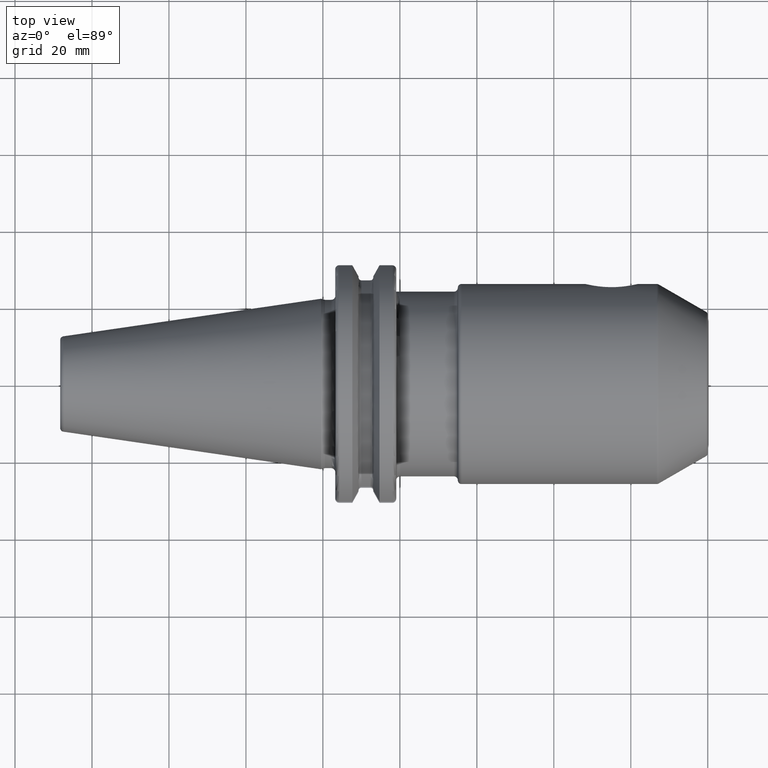
[diagram: clean part render]
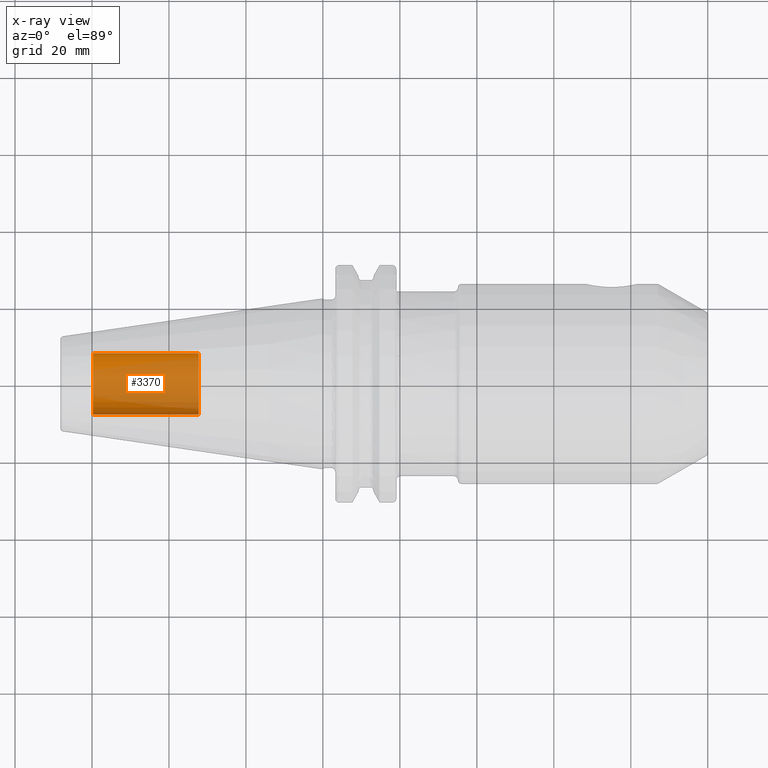
[diagram: x-ray — body ghosted, one internal face saturated and labeled with its STEP entity id]
A machine part, top view, then the same camera in x-ray: the body is ghosted and one INTERNAL B-rep face — a face not visible from any outside direction — is saturated and labeled: STEP entity #3370.
In plain terms, the highlighted cylindrical surface (edge-blend (fillet) strip) has radius 8.0028 mm, axis along (1, 0, 0).
Its self-contained STEP definition (entity closure, byte-faithful):
#3305=CARTESIAN_POINT('',(-5.98E1,0.E0,0.E0));
#3306=DIRECTION('',(-1.E0,0.E0,0.E0));
#3307=DIRECTION('',(0.E0,1.E0,0.E0));
#3308=AXIS2_PLACEMENT_3D('',#3305,#3306,#3307);
#3310=DIRECTION('',(1.E0,0.E0,0.E0));
#3311=VECTOR('',#3310,2.755E1);
#3312=CARTESIAN_POINT('',(-5.98E1,-8.00275E0,0.E0));
#3313=LINE('',#3312,#3311);
#3319=DIRECTION('',(1.E0,0.E0,0.E0));
#3320=VECTOR('',#3319,2.755E1);
#3321=CARTESIAN_POINT('',(-5.98E1,8.00275E0,0.E0));
#3322=LINE('',#3321,#3320);
#3328=CARTESIAN_POINT('',(-3.225E1,0.E0,0.E0));
#3329=DIRECTION('',(1.E0,0.E0,0.E0));
#3330=DIRECTION('',(0.E0,-1.E0,0.E0));
#3331=AXIS2_PLACEMENT_3D('',#3328,#3329,#3330);
#3343=CARTESIAN_POINT('',(-5.98E1,8.00275E0,0.E0));
#3344=CARTESIAN_POINT('',(-5.98E1,-8.00275E0,0.E0));
#3345=VERTEX_POINT('',#3343);
#3346=VERTEX_POINT('',#3344);
#3347=CARTESIAN_POINT('',(-3.225E1,8.00275E0,0.E0));
#3348=CARTESIAN_POINT('',(-3.225E1,-8.00275E0,0.E0));
#3349=VERTEX_POINT('',#3347);
#3350=VERTEX_POINT('',#3348);
#3355=CARTESIAN_POINT('',(-5.98E1,0.E0,0.E0));
#3356=DIRECTION('',(1.E0,0.E0,0.E0));
#3357=DIRECTION('',(0.E0,1.E0,0.E0));
#3358=AXIS2_PLACEMENT_3D('',#3355,#3356,#3357);
#3359=CYLINDRICAL_SURFACE('',#3358,8.00275E0);
#3361=ORIENTED_EDGE('',*,*,#3360,.T.);
#3363=ORIENTED_EDGE('',*,*,#3362,.T.);
#3365=ORIENTED_EDGE('',*,*,#3364,.T.);
#3367=ORIENTED_EDGE('',*,*,#3366,.F.);
#3368=EDGE_LOOP('',(#3361,#3363,#3365,#3367));
#3369=FACE_OUTER_BOUND('',#3368,.F.);
#3370=ADVANCED_FACE('',(#3369),#3359,.T.);
#3309=CIRCLE('',#3308,8.00275E0);
#3332=CIRCLE('',#3331,8.00275E0);
#3360=EDGE_CURVE('',#3345,#3346,#3309,.T.);
#3362=EDGE_CURVE('',#3346,#3350,#3313,.T.);
#3364=EDGE_CURVE('',#3350,#3349,#3332,.T.);
#3366=EDGE_CURVE('',#3345,#3349,#3322,.T.);